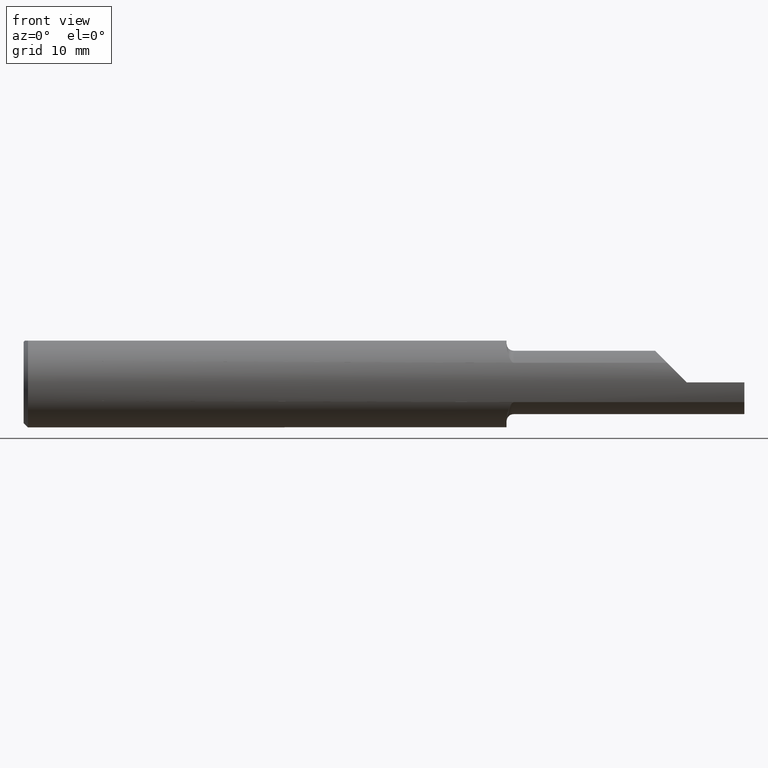
[diagram: clean part render]
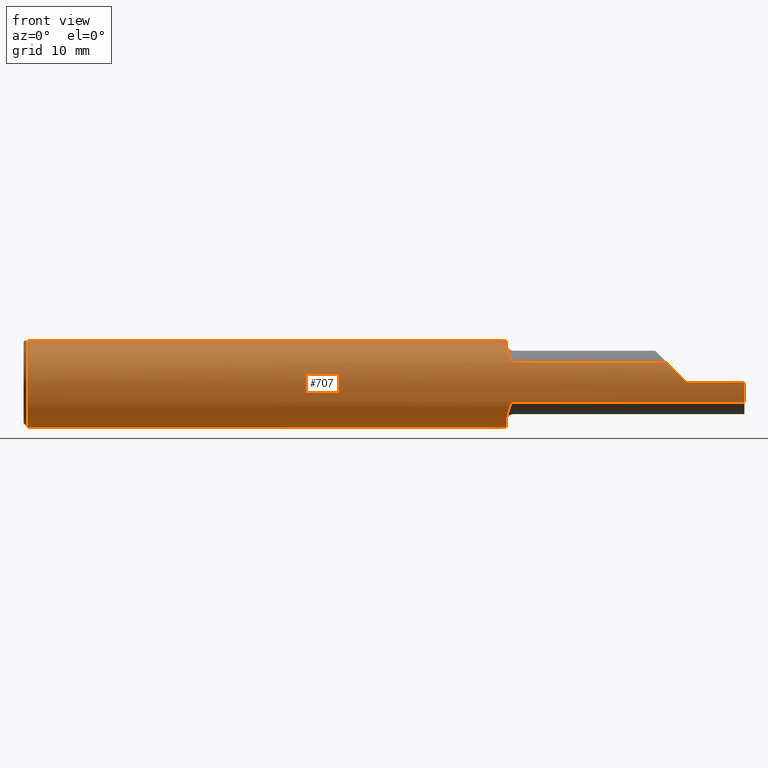
[diagram: same view with one face highlighted and labeled with its STEP entity id]
A machine part, front view. The second image highlights one B-rep face of the part: STEP entity #707.
In plain terms, the highlighted cylindrical surface (partial cylindrical patch) has radius 3.9649 mm, axis along (-1, -0, -0).
Its self-contained STEP definition (entity closure, byte-faithful):
#2 = CARTESIAN_POINT ( 'NONE',  ( 1.676534083241760120, -0.1085804411166635536, -0.1131817073037792026 ) ) ;
#3 = ORIENTED_EDGE ( 'NONE', *, *, #870, .F. ) ;
#7 = CARTESIAN_POINT ( 'NONE',  ( 0.01499999999999970281, 0.000000000000000000, -0.1560999999999999888 ) ) ;
#26 = VERTEX_POINT ( 'NONE', #874 ) ;
#35 = VECTOR ( 'NONE', #56, 39.37007874015748143 ) ;
#36 = VERTEX_POINT ( 'NONE', #592 ) ;
#51 = LINE ( 'NONE', #404, #175 ) ;
#56 = DIRECTION ( 'NONE',  ( 1.000000000000000000, 0.000000000000000000, 0.000000000000000000 ) ) ;
#65 = ORIENTED_EDGE ( 'NONE', *, *, #497, .F. ) ;
#68 = CARTESIAN_POINT ( 'NONE',  ( 1.675000000000000044, -0.08381719038816995426, -0.1316886046529207599 ) ) ;
#69 = EDGE_CURVE ( 'NONE', #214, #454, #104, .T. ) ;
#82 = DIRECTION ( 'NONE',  ( 0.000000000000000000, 0.000000000000000000, -1.000000000000000000 ) ) ;
#94 = EDGE_CURVE ( 'NONE', #189, #695, #181, .T. ) ;
#104 = CIRCLE ( 'NONE', #627, 0.1560999999999999888 ) ;
#112 = CARTESIAN_POINT ( 'NONE',  ( 1.699999999999999956, -0.1404253234750461321, -0.06817579135535316304 ) ) ;
#115 = AXIS2_PLACEMENT_3D ( 'NONE', #216, #643, #82 ) ;
#120 = CARTESIAN_POINT ( 'NONE',  ( 1.692237837478428597, -0.1379520625079433405, 0.07306979920448572474 ) ) ;
#122 = LINE ( 'NONE', #552, #610 ) ;
#123 = ORIENTED_EDGE ( 'NONE', *, *, #409, .T. ) ;
#142 = EDGE_CURVE ( 'NONE', #902, #265, #122, .T. ) ;
#147 = CARTESIAN_POINT ( 'NONE',  ( 2.300000000000000266, -0.1560999999999999888, -3.918740332231607202E-17 ) ) ;
#164 = CYLINDRICAL_SURFACE ( 'NONE', #499, 0.1560999999999999888 ) ;
#168 = VERTEX_POINT ( 'NONE', #770 ) ;
#175 = VECTOR ( 'NONE', #338, 39.37007874015748143 ) ;
#181 = CIRCLE ( 'NONE', #694, 0.1560999999999999888 ) ;
#183 = CARTESIAN_POINT ( 'NONE',  ( 1.675000000000000044, 0.05756040305626777126, 0.1450999999999999790 ) ) ;
#187 = CARTESIAN_POINT ( 'NONE',  ( 1.693392435750742608, -0.1386997847853259358, 0.07163397791871660425 ) ) ;
#189 = VERTEX_POINT ( 'NONE', #747 ) ;
#199 = DIRECTION ( 'NONE',  ( -1.000000000000000000, -0.000000000000000000, -0.000000000000000000 ) ) ;
#203 = CARTESIAN_POINT ( 'NONE',  ( 0.01499999999999970281, 0.000000000000000000, 0.000000000000000000 ) ) ;
#208 = CARTESIAN_POINT ( 'NONE',  ( 1.693429166325216340, -0.1387203257045916405, -0.07159402063229236557 ) ) ;
#213 = CARTESIAN_POINT ( 'NONE',  ( 2.276279741160605941, -0.1561000000000000165, 0.02372025883939345506 ) ) ;
#214 = VERTEX_POINT ( 'NONE', #7 ) ;
#216 = CARTESIAN_POINT ( 'NONE',  ( 2.500000000000000000, 0.000000000000000000, 0.000000000000000000 ) ) ;
#217 = CARTESIAN_POINT ( 'NONE',  ( 1.675000000000000044, 0.000000000000000000, 0.000000000000000000 ) ) ;
#218 = CARTESIAN_POINT ( 'NONE',  ( 1.699999999999999956, -0.1404253234750461321, -0.06817579135535316304 ) ) ;
#222 = DIRECTION ( 'NONE',  ( 0.000000000000000000, 0.000000000000000000, -1.000000000000000000 ) ) ;
#236 = EDGE_CURVE ( 'NONE', #265, #36, #582, .T. ) ;
#240 = DIRECTION ( 'NONE',  ( 0.000000000000000000, 0.000000000000000000, 1.000000000000000000 ) ) ;
#253 = EDGE_CURVE ( 'NONE', #189, #739, #757, .T. ) ;
#254 = ORIENTED_EDGE ( 'NONE', *, *, #794, .F. ) ;
#257 = AXIS2_PLACEMENT_3D ( 'NONE', #217, #562, #222 ) ;
#263 = CARTESIAN_POINT ( 'NONE',  ( 1.675408103372244994, -0.09658968664339810661, 0.1228705714355937950 ) ) ;
#265 = VERTEX_POINT ( 'NONE', #272 ) ;
#266 = DIRECTION ( 'NONE',  ( 1.000000000000000000, 0.000000000000000000, 0.000000000000000000 ) ) ;
#270 = CARTESIAN_POINT ( 'NONE',  ( 2.055000000000000160, -0.1404253234750461321, -0.06817579135535316304 ) ) ;
#272 = CARTESIAN_POINT ( 'NONE',  ( 2.300000000000000266, -0.1560999999999999888, -3.918740332231607202E-17 ) ) ;
#311 = ORIENTED_EDGE ( 'NONE', *, *, #142, .T. ) ;
#314 = VERTEX_POINT ( 'NONE', #768 ) ;
#328 = CARTESIAN_POINT ( 'NONE',  ( 1.675000000000000044, -0.08381719038816995426, 0.1316886046529207599 ) ) ;
#329 = DIRECTION ( 'NONE',  ( 0.000000000000000000, 0.000000000000000000, -1.000000000000000000 ) ) ;
#336 = VERTEX_POINT ( 'NONE', #347 ) ;
#338 = DIRECTION ( 'NONE',  ( -1.000000000000000000, -0.000000000000000000, -0.000000000000000000 ) ) ;
#343 = EDGE_CURVE ( 'NONE', #690, #168, #528, .T. ) ;
#347 = CARTESIAN_POINT ( 'NONE',  ( 0.01499999999999970107, -0.05756040305626777126, 0.1450999999999999790 ) ) ;
#353 = CARTESIAN_POINT ( 'NONE',  ( 1.681403200130684006, -0.1234706953780183025, -0.09581413073336603192 ) ) ;
#363 = CARTESIAN_POINT ( 'NONE',  ( 2.500000000000000000, -0.1561000000000000165, -3.918740332231607202E-17 ) ) ;
#364 = CIRCLE ( 'NONE', #257, 0.1560999999999999888 ) ;
#378 = CIRCLE ( 'NONE', #115, 0.1560999999999999888 ) ;
#379 = ORIENTED_EDGE ( 'NONE', *, *, #69, .T. ) ;
#388 = EDGE_CURVE ( 'NONE', #454, #695, #846, .T. ) ;
#390 = DIRECTION ( 'NONE',  ( 1.000000000000000000, 0.000000000000000000, 0.000000000000000000 ) ) ;
#398 = DIRECTION ( 'NONE',  ( -1.000000000000000000, -0.000000000000000000, -0.000000000000000000 ) ) ;
#404 = CARTESIAN_POINT ( 'NONE',  ( 2.500000000000000000, -0.05756040305626777126, 0.1450999999999999790 ) ) ;
#409 = EDGE_CURVE ( 'NONE', #314, #336, #51, .T. ) ;
#410 = CARTESIAN_POINT ( 'NONE',  ( 1.681414747612839156, -0.1234875550582431591, 0.09578598333246278462 ) ) ;
#420 = CARTESIAN_POINT ( 'NONE',  ( 0.01499999999999970281, 0.05756040305626777126, 0.1450999999999999790 ) ) ;
#425 = CARTESIAN_POINT ( 'NONE',  ( 1.689206631919841772, -0.1356135290907077295, -0.07737645377574915717 ) ) ;
#435 = ORIENTED_EDGE ( 'NONE', *, *, #854, .T. ) ;
#454 = VERTEX_POINT ( 'NONE', #420 ) ;
#466 = CARTESIAN_POINT ( 'NONE',  ( 1.687605359673460814, -0.1337809426577717675, 0.08051774082737317428 ) ) ;
#478 = DIRECTION ( 'NONE',  ( 1.000000000000000000, -0.000000000000000000, -0.000000000000000000 ) ) ;
#493 = CARTESIAN_POINT ( 'NONE',  ( 2.253162613644221768, -0.1507850122484572508, 0.04683738635577809617 ) ) ;
#497 = EDGE_CURVE ( 'NONE', #314, #168, #364, .T. ) ;
#499 = AXIS2_PLACEMENT_3D ( 'NONE', #883, #516, #240 ) ;
#505 = CARTESIAN_POINT ( 'NONE',  ( 2.231824208644646479, -0.1404253234750460488, 0.06817579135535328794 ) ) ;
#513 = FACE_OUTER_BOUND ( 'NONE', #549, .T. ) ;
#516 = DIRECTION ( 'NONE',  ( -1.000000000000000000, -0.000000000000000000, -0.000000000000000000 ) ) ;
#526 = VECTOR ( 'NONE', #398, 39.37007874015748143 ) ;
#528 = B_SPLINE_CURVE_WITH_KNOTS ( 'NONE', 3,
 ( #633, #535, #904, #187, #120, #547, #466, #630, #410, #687, #752, #263, #835, #328 ),
 .UNSPECIFIED., .F., .F.,
 ( 4, 2, 2, 2, 2, 2, 4 ),
 ( 0.000000000000000000, 0.0001496528642217778910, 0.0002993057284435557820, 0.0005986114568871121061, 0.001197222913774225080, 0.001795834370661338053, 0.002394445827548450593 ),
 .UNSPECIFIED. ) ;
#535 = CARTESIAN_POINT ( 'NONE',  ( 1.698004332278162831, -0.1404253234750461321, 0.06817579135535317691 ) ) ;
#538 = ORIENTED_EDGE ( 'NONE', *, *, #236, .T. ) ;
#547 = CARTESIAN_POINT ( 'NONE',  ( 1.689166370965441644, -0.1355737491029501418, 0.07744673639403797105 ) ) ;
#549 = EDGE_LOOP ( 'NONE', ( #671, #3, #311, #538, #254, #911, #65, #123, #435, #379, #748, #665, #676 ) ) ;
#552 = CARTESIAN_POINT ( 'NONE',  ( 2.500000000000000000, -0.1560999999999999888, -3.918740332231607202E-17 ) ) ;
#562 = DIRECTION ( 'NONE',  ( 1.000000000000000000, 0.000000000000000000, 0.000000000000000000 ) ) ;
#582 =( BOUNDED_CURVE ( )  B_SPLINE_CURVE ( 3, ( #147, #213, #493, #505 ),
 .UNSPECIFIED., .F., .T. ) 
 B_SPLINE_CURVE_WITH_KNOTS ( ( 4, 4 ),
 ( 4.712388980384687898, 5.164365393897303314 ),
 .UNSPECIFIED. ) 
 CURVE ( )  GEOMETRIC_REPRESENTATION_ITEM ( )  RATIONAL_B_SPLINE_CURVE ( ( 1.000000000000000000, 0.9830487706143840043, 0.9830487706143840043, 1.000000000000000000 ) ) 
 REPRESENTATION_ITEM ( '' )  );
#591 = CIRCLE ( 'NONE', #788, 0.1560999999999999888 ) ;
#592 = CARTESIAN_POINT ( 'NONE',  ( 2.231824208644646479, -0.1404253234750460488, 0.06817579135535328794 ) ) ;
#610 = VECTOR ( 'NONE', #199, 39.37007874015748143 ) ;
#614 = LINE ( 'NONE', #845, #733 ) ;
#627 = AXIS2_PLACEMENT_3D ( 'NONE', #203, #478, #329 ) ;
#630 = CARTESIAN_POINT ( 'NONE',  ( 1.683416808568585443, -0.1279360967279929984, 0.08973580099040201485 ) ) ;
#631 = CARTESIAN_POINT ( 'NONE',  ( 1.674999999999999378, -0.09698794191859314018, -0.1233056819885771233 ) ) ;
#633 = CARTESIAN_POINT ( 'NONE',  ( 1.699999999999999956, -0.1404253234750461321, 0.06817579135535316304 ) ) ;
#639 = CARTESIAN_POINT ( 'NONE',  ( 1.698017170444489077, -0.1404253234750461876, -0.06817579135535316304 ) ) ;
#643 = DIRECTION ( 'NONE',  ( 1.000000000000000000, 0.000000000000000000, 0.000000000000000000 ) ) ;
#657 = CARTESIAN_POINT ( 'NONE',  ( 1.699999999999999956, -0.1404253234750461321, 0.06817579135535316304 ) ) ;
#665 = ORIENTED_EDGE ( 'NONE', *, *, #94, .F. ) ;
#671 = ORIENTED_EDGE ( 'NONE', *, *, #763, .F. ) ;
#676 = ORIENTED_EDGE ( 'NONE', *, *, #253, .T. ) ;
#679 = CARTESIAN_POINT ( 'NONE',  ( 2.500000000000000000, 0.05756040305626777126, 0.1450999999999999790 ) ) ;
#687 = CARTESIAN_POINT ( 'NONE',  ( 1.678193910147385282, -0.1136745389711200649, 0.1072484500910515781 ) ) ;
#690 = VERTEX_POINT ( 'NONE', #657 ) ;
#694 = AXIS2_PLACEMENT_3D ( 'NONE', #905, #390, #895 ) ;
#695 = VERTEX_POINT ( 'NONE', #183 ) ;
#707 = ADVANCED_FACE ( 'NONE', ( #513 ), #164, .T. ) ;
#708 = CARTESIAN_POINT ( 'NONE',  ( 1.696255291801900489, -0.1399378351544087185, -0.06918406497295910562 ) ) ;
#733 = VECTOR ( 'NONE', #266, 39.37007874015748143 ) ;
#739 = VERTEX_POINT ( 'NONE', #112 ) ;
#747 = CARTESIAN_POINT ( 'NONE',  ( 1.675000000000000044, -0.08381719038816995426, -0.1316886046529207599 ) ) ;
#748 = ORIENTED_EDGE ( 'NONE', *, *, #388, .T. ) ;
#752 = CARTESIAN_POINT ( 'NONE',  ( 1.677003144326046247, -0.1082360171314162151, 0.1127462171707191707 ) ) ;
#757 = B_SPLINE_CURVE_WITH_KNOTS ( 'NONE', 3,
 ( #68, #631, #2, #353, #916, #862, #425, #858, #208, #708, #639, #218 ),
 .UNSPECIFIED., .F., .F.,
 ( 4, 2, 2, 2, 2, 4 ),
 ( 0.000000000000000000, 0.001172760684278173092, 0.001759141026417261697, 0.002052331197486809145, 0.002198926283021587855, 0.002345521368556366566 ),
 .UNSPECIFIED. ) ;
#763 = EDGE_CURVE ( 'NONE', #26, #739, #912, .T. ) ;
#768 = CARTESIAN_POINT ( 'NONE',  ( 1.675000000000000044, -0.05756040305626777820, 0.1450999999999999790 ) ) ;
#770 = CARTESIAN_POINT ( 'NONE',  ( 1.675000000000000044, -0.08381719038816995426, 0.1316886046529207599 ) ) ;
#787 = CARTESIAN_POINT ( 'NONE',  ( 0.01499999999999970281, 0.000000000000000000, 0.000000000000000000 ) ) ;
#788 = AXIS2_PLACEMENT_3D ( 'NONE', #787, #850, #918 ) ;
#794 = EDGE_CURVE ( 'NONE', #690, #36, #614, .T. ) ;
#835 = CARTESIAN_POINT ( 'NONE',  ( 1.674999999999999822, -0.09039521068908672186, 0.1275018249281880678 ) ) ;
#845 = CARTESIAN_POINT ( 'NONE',  ( 2.055000000000000160, -0.1404253234750461321, 0.06817579135535316304 ) ) ;
#846 = LINE ( 'NONE', #679, #35 ) ;
#850 = DIRECTION ( 'NONE',  ( 1.000000000000000000, -0.000000000000000000, -0.000000000000000000 ) ) ;
#854 = EDGE_CURVE ( 'NONE', #336, #214, #591, .T. ) ;
#858 = CARTESIAN_POINT ( 'NONE',  ( 1.692279478956145056, -0.1379798729808596747, -0.07301711011826302056 ) ) ;
#862 = CARTESIAN_POINT ( 'NONE',  ( 1.687623797854640229, -0.1338035519503443516, -0.08048043396403946337 ) ) ;
#870 = EDGE_CURVE ( 'NONE', #902, #26, #378, .T. ) ;
#874 = CARTESIAN_POINT ( 'NONE',  ( 2.500000000000000000, -0.1404253234750461043, -0.06817579135535321855 ) ) ;
#883 = CARTESIAN_POINT ( 'NONE',  ( 2.500000000000000000, 0.000000000000000000, 0.000000000000000000 ) ) ;
#895 = DIRECTION ( 'NONE',  ( 0.000000000000000000, 0.000000000000000000, -1.000000000000000000 ) ) ;
#902 = VERTEX_POINT ( 'NONE', #363 ) ;
#904 = CARTESIAN_POINT ( 'NONE',  ( 1.696217203179352762, -0.1399260202903903350, 0.06920813490947569369 ) ) ;
#905 = CARTESIAN_POINT ( 'NONE',  ( 1.675000000000000044, 0.000000000000000000, 0.000000000000000000 ) ) ;
#911 = ORIENTED_EDGE ( 'NONE', *, *, #343, .T. ) ;
#912 = LINE ( 'NONE', #270, #526 ) ;
#916 = CARTESIAN_POINT ( 'NONE',  ( 1.683423283070733412, -0.1279513233426676500, -0.08971505958942786740 ) ) ;
#918 = DIRECTION ( 'NONE',  ( 0.000000000000000000, 0.000000000000000000, -1.000000000000000000 ) ) ;